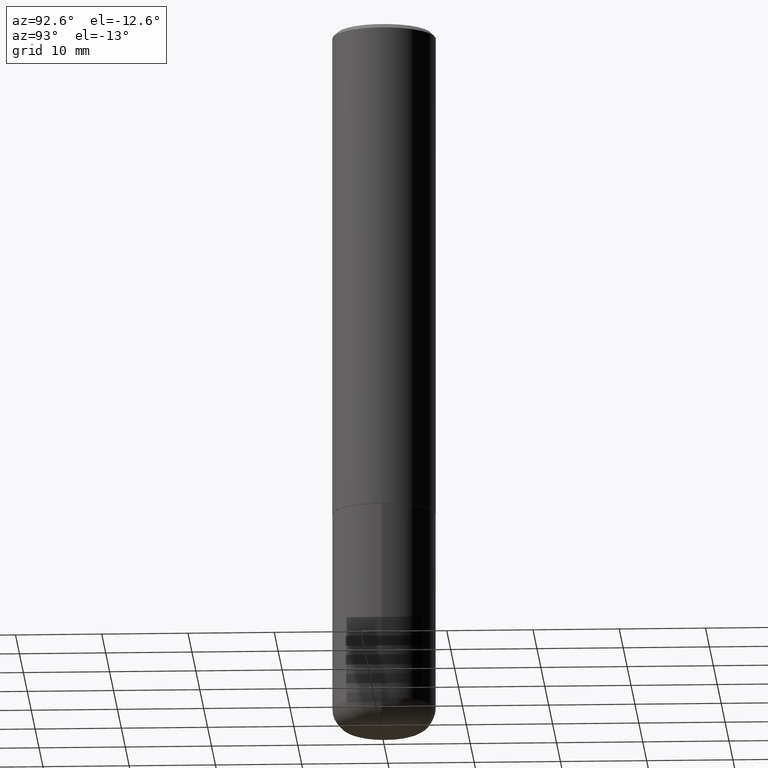
[diagram: clean part render]
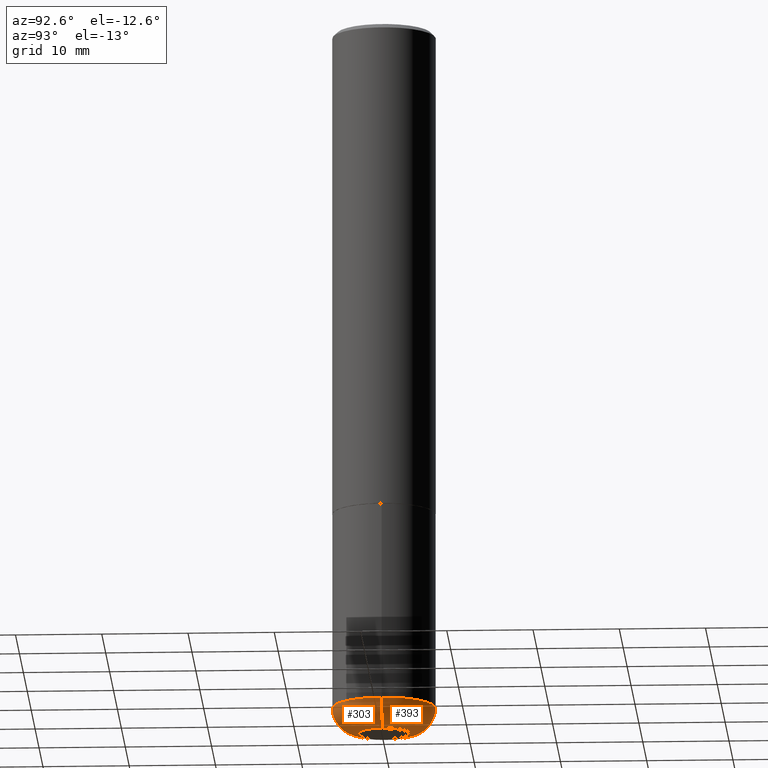
[diagram: same view with one multi-face feature highlighted, each face labeled with its STEP entity id]
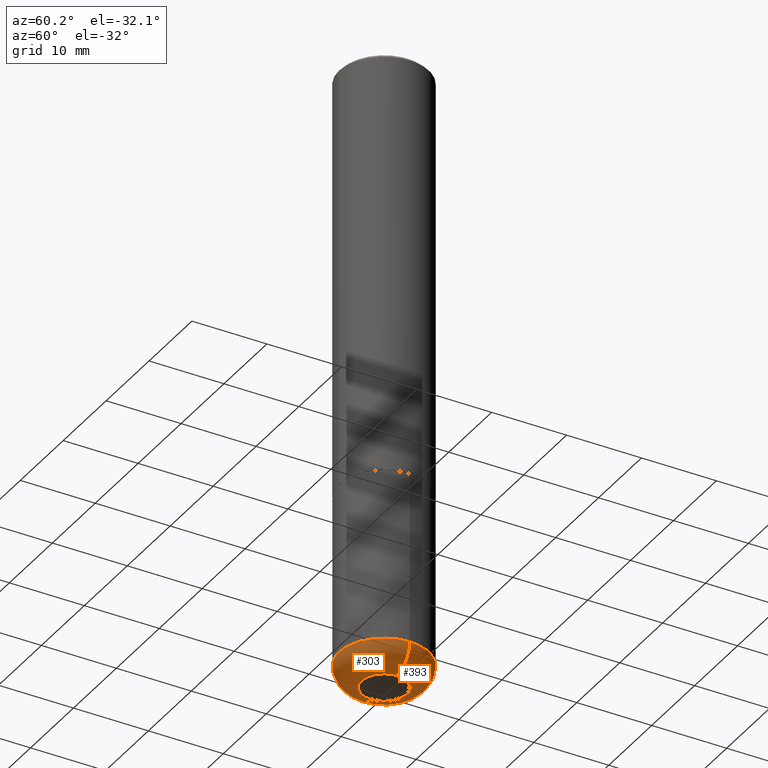
[diagram: same view with one multi-face feature highlighted, each face labeled with its STEP entity id]
A machine part, auxiliary view. The highlighted faces form ONE feature: a constant-radius fillet chain: 2 tangent blend faces with common blend radius 2.9997 mm. The faces share edges in the B-rep.
A second angle (auxiliary view) of the same feature is appended — it is thin or edge-on in the first view.
Their STEP definitions:
[1] entity #393 (Torus):
#20 = ORIENTED_EDGE ( 'NONE', *, *, #112, .T. ) ;
#31 = EDGE_CURVE ( 'NONE', #173, #405, #370, .T. ) ;
#38 = FACE_OUTER_BOUND ( 'NONE', #65, .T. ) ;
#39 = CARTESIAN_POINT ( 'NONE',  ( -0.1181000000000000383, -9.944215141480041685E-15, -3.267700000000000049 ) ) ;
#45 = CARTESIAN_POINT ( 'NONE',  ( 7.991058417971171713E-29, -1.140911357093774644E-14, -3.267700000000000049 ) ) ;
#51 = AXIS2_PLACEMENT_3D ( 'NONE', #318, #58, #91 ) ;
#56 = DIRECTION ( 'NONE',  ( 1.000000000000000000, -6.982962677686265133E-15, 0.000000000000000000 ) ) ;
#58 = DIRECTION ( 'NONE',  ( -6.982962677686266711E-15, -1.000000000000000000, 3.491481338843145583E-15 ) ) ;
#65 = EDGE_LOOP ( 'NONE', ( #346, #20, #267, #184 ) ) ;
#66 = CARTESIAN_POINT ( 'NONE',  ( 0.2361999999999999933, -1.264614540928986883E-14, -3.149600000000000399 ) ) ;
#78 = CIRCLE ( 'NONE', #287, 0.2361999999999999933 ) ;
#88 = AXIS2_PLACEMENT_3D ( 'NONE', #138, #266, #396 ) ;
#91 = DIRECTION ( 'NONE',  ( 1.000000000000000000, -6.982962677686273021E-15, 0.000000000000000000 ) ) ;
#97 = DIRECTION ( 'NONE',  ( -2.445468806185136597E-29, 3.491481338843145583E-15, 1.000000000000000000 ) ) ;
#98 = CARTESIAN_POINT ( 'NONE',  ( 0.1181000000000000105, -1.223380146317249628E-14, -3.267700000000000049 ) ) ;
#110 = EDGE_CURVE ( 'NONE', #173, #281, #139, .T. ) ;
#112 = EDGE_CURVE ( 'NONE', #405, #361, #255, .T. ) ;
#126 = EDGE_CURVE ( 'NONE', #281, #361, #78, .T. ) ;
#138 = CARTESIAN_POINT ( 'NONE',  ( 7.702248551960706711E-29, -1.099676962482037231E-14, -3.149600000000000399 ) ) ;
#139 = CIRCLE ( 'NONE', #51, 0.1180999999999999966 ) ;
#173 = VERTEX_POINT ( 'NONE', #98 ) ;
#179 = DIRECTION ( 'NONE',  ( 1.000000000000000000, -6.982962677686272233E-15, 0.000000000000000000 ) ) ;
#184 = ORIENTED_EDGE ( 'NONE', *, *, #110, .F. ) ;
#190 = CARTESIAN_POINT ( 'NONE',  ( -0.1180999999999999966, -1.015761865388769332E-14, -3.149600000000000399 ) ) ;
#195 = TOROIDAL_SURFACE ( 'NONE', #88, 0.1180999999999999966, 0.1181000000000000105 ) ;
#254 = AXIS2_PLACEMENT_3D ( 'NONE', #45, #277, #179 ) ;
#255 = CIRCLE ( 'NONE', #313, 0.1180999999999999966 ) ;
#264 = CARTESIAN_POINT ( 'NONE',  ( -0.2361999999999999933, -9.318467682955017493E-15, -3.149600000000000399 ) ) ;
#266 = DIRECTION ( 'NONE',  ( -2.445468806185136597E-29, 3.491481338843145583E-15, 1.000000000000000000 ) ) ;
#267 = ORIENTED_EDGE ( 'NONE', *, *, #126, .F. ) ;
#277 = DIRECTION ( 'NONE',  ( -2.445468806185136597E-29, 3.491481338843145583E-15, 1.000000000000000000 ) ) ;
#281 = VERTEX_POINT ( 'NONE', #66 ) ;
#285 = CARTESIAN_POINT ( 'NONE',  ( 7.702248551960706711E-29, -1.099676962482037231E-14, -3.149600000000000399 ) ) ;
#287 = AXIS2_PLACEMENT_3D ( 'NONE', #285, #97, #56 ) ;
#289 = DIRECTION ( 'NONE',  ( 7.105427357601001859E-15, 1.000000000000000000, -3.491481338843145583E-15 ) ) ;
#313 = AXIS2_PLACEMENT_3D ( 'NONE', #190, #289, #414 ) ;
#318 = CARTESIAN_POINT ( 'NONE',  ( 0.1180999999999999966, -1.182145751705512057E-14, -3.149600000000000399 ) ) ;
#346 = ORIENTED_EDGE ( 'NONE', *, *, #31, .T. ) ;
#361 = VERTEX_POINT ( 'NONE', #264 ) ;
#370 = CIRCLE ( 'NONE', #254, 0.1181000000000000105 ) ;
#393 = ADVANCED_FACE ( 'NONE', ( #38 ), #195, .T. ) ;
#396 = DIRECTION ( 'NONE',  ( 1.000000000000000000, -6.982962677686264344E-15, 4.883557194083111780E-29 ) ) ;
#405 = VERTEX_POINT ( 'NONE', #39 ) ;
#414 = DIRECTION ( 'NONE',  ( -1.000000000000000000, 7.105427357601005014E-15, 0.000000000000000000 ) ) ;
[2] entity #303 (Torus):
#1 = DIRECTION ( 'NONE',  ( 1.000000000000000000, -6.982962677686264344E-15, 4.883557194083111780E-29 ) ) ;
#15 = AXIS2_PLACEMENT_3D ( 'NONE', #317, #352, #321 ) ;
#39 = CARTESIAN_POINT ( 'NONE',  ( -0.1181000000000000383, -9.944215141480041685E-15, -3.267700000000000049 ) ) ;
#43 = ORIENTED_EDGE ( 'NONE', *, *, #110, .T. ) ;
#51 = AXIS2_PLACEMENT_3D ( 'NONE', #318, #58, #91 ) ;
#58 = DIRECTION ( 'NONE',  ( -6.982962677686266711E-15, -1.000000000000000000, 3.491481338843145583E-15 ) ) ;
#66 = CARTESIAN_POINT ( 'NONE',  ( 0.2361999999999999933, -1.264614540928986883E-14, -3.149600000000000399 ) ) ;
#67 = ORIENTED_EDGE ( 'NONE', *, *, #118, .T. ) ;
#91 = DIRECTION ( 'NONE',  ( 1.000000000000000000, -6.982962677686273021E-15, 0.000000000000000000 ) ) ;
#92 = CARTESIAN_POINT ( 'NONE',  ( 7.702248551960706711E-29, -1.099676962482037231E-14, -3.149600000000000399 ) ) ;
#98 = CARTESIAN_POINT ( 'NONE',  ( 0.1181000000000000105, -1.223380146317249628E-14, -3.267700000000000049 ) ) ;
#110 = EDGE_CURVE ( 'NONE', #173, #281, #139, .T. ) ;
#111 = EDGE_LOOP ( 'NONE', ( #340, #67, #43, #214 ) ) ;
#112 = EDGE_CURVE ( 'NONE', #405, #361, #255, .T. ) ;
#118 = EDGE_CURVE ( 'NONE', #405, #173, #416, .T. ) ;
#130 = DIRECTION ( 'NONE',  ( -2.445468806185136597E-29, 3.491481338843145583E-15, 1.000000000000000000 ) ) ;
#136 = DIRECTION ( 'NONE',  ( -2.445468806185136597E-29, 3.491481338843145583E-15, 1.000000000000000000 ) ) ;
#139 = CIRCLE ( 'NONE', #51, 0.1180999999999999966 ) ;
#140 = FACE_OUTER_BOUND ( 'NONE', #111, .T. ) ;
#161 = CIRCLE ( 'NONE', #397, 0.2361999999999999933 ) ;
#169 = CARTESIAN_POINT ( 'NONE',  ( 7.702248551960706711E-29, -1.099676962482037231E-14, -3.149600000000000399 ) ) ;
#173 = VERTEX_POINT ( 'NONE', #98 ) ;
#190 = CARTESIAN_POINT ( 'NONE',  ( -0.1180999999999999966, -1.015761865388769332E-14, -3.149600000000000399 ) ) ;
#214 = ORIENTED_EDGE ( 'NONE', *, *, #222, .F. ) ;
#222 = EDGE_CURVE ( 'NONE', #361, #281, #161, .T. ) ;
#255 = CIRCLE ( 'NONE', #313, 0.1180999999999999966 ) ;
#258 = DIRECTION ( 'NONE',  ( 1.000000000000000000, -6.982962677686265133E-15, 0.000000000000000000 ) ) ;
#264 = CARTESIAN_POINT ( 'NONE',  ( -0.2361999999999999933, -9.318467682955017493E-15, -3.149600000000000399 ) ) ;
#281 = VERTEX_POINT ( 'NONE', #66 ) ;
#282 = TOROIDAL_SURFACE ( 'NONE', #293, 0.1180999999999999966, 0.1181000000000000105 ) ;
#289 = DIRECTION ( 'NONE',  ( 7.105427357601001859E-15, 1.000000000000000000, -3.491481338843145583E-15 ) ) ;
#293 = AXIS2_PLACEMENT_3D ( 'NONE', #169, #136, #1 ) ;
#303 = ADVANCED_FACE ( 'NONE', ( #140 ), #282, .T. ) ;
#313 = AXIS2_PLACEMENT_3D ( 'NONE', #190, #289, #414 ) ;
#317 = CARTESIAN_POINT ( 'NONE',  ( 7.991058417971171713E-29, -1.140911357093774644E-14, -3.267700000000000049 ) ) ;
#318 = CARTESIAN_POINT ( 'NONE',  ( 0.1180999999999999966, -1.182145751705512057E-14, -3.149600000000000399 ) ) ;
#321 = DIRECTION ( 'NONE',  ( 1.000000000000000000, -6.982962677686272233E-15, 0.000000000000000000 ) ) ;
#340 = ORIENTED_EDGE ( 'NONE', *, *, #112, .F. ) ;
#352 = DIRECTION ( 'NONE',  ( -2.445468806185136597E-29, 3.491481338843145583E-15, 1.000000000000000000 ) ) ;
#361 = VERTEX_POINT ( 'NONE', #264 ) ;
#397 = AXIS2_PLACEMENT_3D ( 'NONE', #92, #130, #258 ) ;
#405 = VERTEX_POINT ( 'NONE', #39 ) ;
#414 = DIRECTION ( 'NONE',  ( -1.000000000000000000, 7.105427357601005014E-15, 0.000000000000000000 ) ) ;
#416 = CIRCLE ( 'NONE', #15, 0.1181000000000000105 ) ;